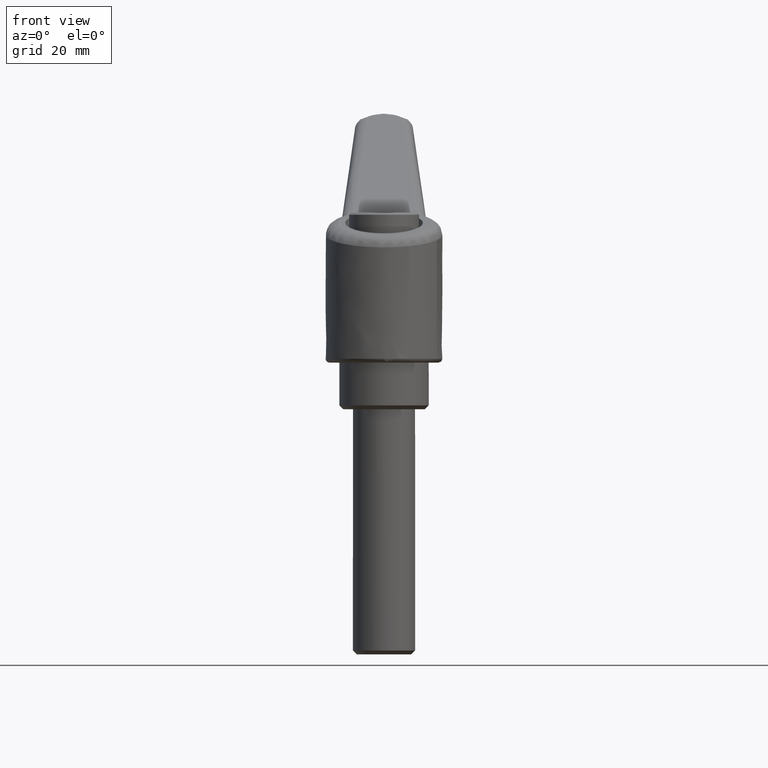
[diagram: clean part render]
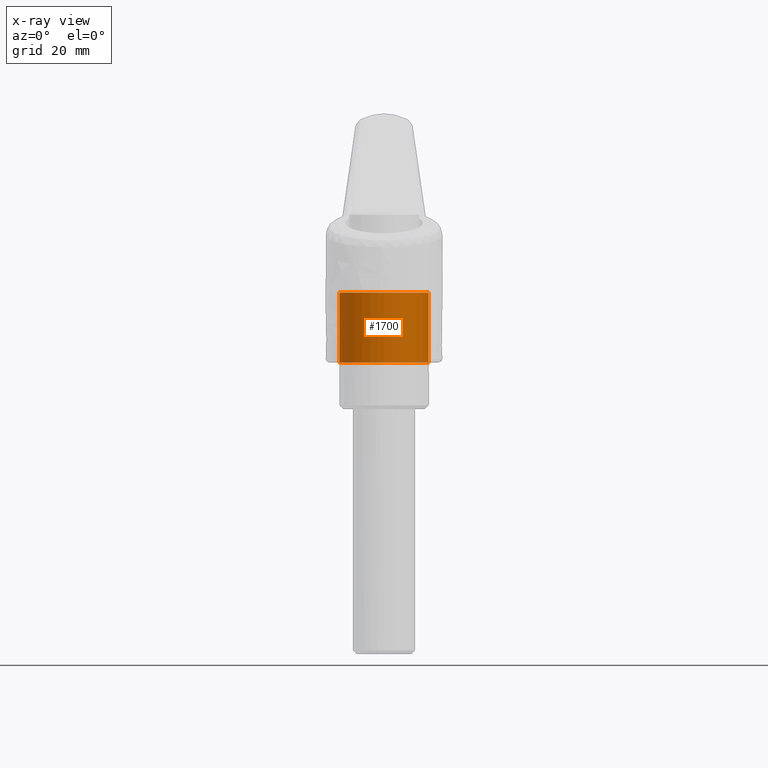
[diagram: x-ray — body ghosted, one internal face saturated and labeled with its STEP entity id]
A machine part, front view, then the same camera in x-ray: the body is ghosted and one INTERNAL B-rep face — a face not visible from any outside direction — is saturated and labeled: STEP entity #1700.
In plain terms, the highlighted face is a freeform B-spline surface patch.
Its self-contained STEP definition (entity closure, byte-faithful):
#1602=CARTESIAN_POINT('',(-0.902279600870224,-11.464549337930970,30.449999999999999));
#1603=CARTESIAN_POINT('',(-12.366828938801191,-10.562269737060745,30.449999999999996));
#1604=CARTESIAN_POINT('',(-11.464549337930970,0.902279600870224,30.449999999999999));
#1605=CARTESIAN_POINT('',(-10.562269737060745,12.366828938801191,30.449999999999996));
#1606=CARTESIAN_POINT('',(0.902279600870224,11.464549337930970,30.449999999999999));
#1607=CARTESIAN_POINT('',(-0.902279600870224,-11.464549337930970,11.538750000000000));
#1608=CARTESIAN_POINT('',(-12.366828938801191,-10.562269737060745,11.538750000000000));
#1609=CARTESIAN_POINT('',(-11.464549337930970,0.902279600870224,11.538750000000000));
#1610=CARTESIAN_POINT('',(-10.562269737060745,12.366828938801191,11.538750000000000));
#1611=CARTESIAN_POINT('',(0.902279600870224,11.464549337930970,11.538750000000000));
#1619=(BOUNDED_SURFACE()B_SPLINE_SURFACE(2,1,((#1602,#1607),(#1603,#1608),(#1604,#1609),(#1605,#1610),(#1606,#1611)),.UNSPECIFIED.,.F.,.F.,.U.)B_SPLINE_SURFACE_WITH_KNOTS((3,2,3),(2,2),(0.0,19.053823869162368,38.107647738324737),(0.0,18.911250000000010),.UNSPECIFIED.)GEOMETRIC_REPRESENTATION_ITEM()RATIONAL_B_SPLINE_SURFACE(((1.0,1.0),(0.707106781186548,0.707106781186548),(1.0,1.0),(0.707106781186548,0.707106781186548),(1.0,1.0)))REPRESENTATION_ITEM('')SURFACE());
#1620=CARTESIAN_POINT('',(-11.500000000000000,0.0,30.0));
#1621=VERTEX_POINT('',#1620);
#1622=CARTESIAN_POINT('',(-0.902279600992910,-11.464549337921310,30.0));
#1623=VERTEX_POINT('',#1622);
#1624=CARTESIAN_POINT('',(-11.500000000000000,0.0,30.0));
#1625=CARTESIAN_POINT('',(-11.500000000000000,-10.630490653841152,30.000000000000004));
#1626=CARTESIAN_POINT('',(-0.902279600992910,-11.464549337921316,30.0));
#1634=(BOUNDED_CURVE()B_SPLINE_CURVE(2,(#1624,#1625,#1626),.UNSPECIFIED.,.F.,.U.)B_SPLINE_CURVE_WITH_KNOTS((3,3),(0.0,0.236331300629098),.UNSPECIFIED.)CURVE()GEOMETRIC_REPRESENTATION_ITEM()RATIONAL_B_SPLINE_CURVE((1.0,0.723120658609495,0.969723356164159))REPRESENTATION_ITEM(''));
#1635=EDGE_CURVE('',#1621,#1623,#1634,.T.);
#1636=ORIENTED_EDGE('',*,*,#1635,.T.);
#1637=CARTESIAN_POINT('',(-0.902279600992910,-11.464549337921310,12.0));
#1638=VERTEX_POINT('',#1637);
#1639=CARTESIAN_POINT('',(-0.902279600992910,-11.464549337921310,30.0));
#1640=CARTESIAN_POINT('',(-0.902279600992910,-11.464549337921310,12.0));
#1641=QUASI_UNIFORM_CURVE('',1,(#1639,#1640),.UNSPECIFIED.,.F.,.U.);
#1642=EDGE_CURVE('',#1623,#1638,#1641,.T.);
#1643=ORIENTED_EDGE('',*,*,#1642,.T.);
#1644=CARTESIAN_POINT('',(-11.500000000000000,0.0,12.0));
#1645=VERTEX_POINT('',#1644);
#1646=CARTESIAN_POINT('',(-11.500000000000000,0.0,12.0));
#1647=CARTESIAN_POINT('',(-11.500000000000000,-10.630490653841152,12.000000000000004));
#1648=CARTESIAN_POINT('',(-0.902279600992910,-11.464549337921316,11.999999999999996));
#1656=(BOUNDED_CURVE()B_SPLINE_CURVE(2,(#1646,#1647,#1648),.UNSPECIFIED.,.F.,.U.)B_SPLINE_CURVE_WITH_KNOTS((3,3),(0.0,0.236331300629098),.UNSPECIFIED.)CURVE()GEOMETRIC_REPRESENTATION_ITEM()RATIONAL_B_SPLINE_CURVE((1.0,0.723120658609495,0.969723356164159))REPRESENTATION_ITEM(''));
#1657=EDGE_CURVE('',#1645,#1638,#1656,.T.);
#1658=ORIENTED_EDGE('',*,*,#1657,.F.);
#1659=CARTESIAN_POINT('',(0.902279600992912,11.464549337921319,12.0));
#1660=VERTEX_POINT('',#1659);
#1661=CARTESIAN_POINT('',(0.902279600992912,11.464549337921317,11.999999999999998));
#1662=CARTESIAN_POINT('',(0.451836230711461,11.500000000000000,12.000000000000004));
#1663=CARTESIAN_POINT('',(0.0,11.500000000000000,12.0));
#1664=CARTESIAN_POINT('',(-11.500000000000000,11.500000000000000,12.0));
#1665=CARTESIAN_POINT('',(-11.500000000000000,0.0,12.0));
#1673=(BOUNDED_CURVE()B_SPLINE_CURVE(2,(#1661,#1662,#1663,#1664,#1665),.UNSPECIFIED.,.F.,.U.)B_SPLINE_CURVE_WITH_KNOTS((3,2,3),(0.736331300629098,0.750000000000000,1.0),.UNSPECIFIED.)CURVE()GEOMETRIC_REPRESENTATION_ITEM()RATIONAL_B_SPLINE_CURVE((0.969723356164158,0.983986122577052,1.0,0.707106781186548,1.0))REPRESENTATION_ITEM(''));
#1674=EDGE_CURVE('',#1660,#1645,#1673,.T.);
#1675=ORIENTED_EDGE('',*,*,#1674,.F.);
#1676=CARTESIAN_POINT('',(0.902279600992908,11.464549337921310,30.0));
#1677=VERTEX_POINT('',#1676);
#1678=CARTESIAN_POINT('',(0.902279600992908,11.464549337921310,30.0));
#1679=CARTESIAN_POINT('',(0.902279600992912,11.464549337921319,12.0));
#1680=QUASI_UNIFORM_CURVE('',1,(#1678,#1679),.UNSPECIFIED.,.F.,.U.);
#1681=EDGE_CURVE('',#1677,#1660,#1680,.T.);
#1682=ORIENTED_EDGE('',*,*,#1681,.F.);
#1683=CARTESIAN_POINT('',(0.902279600992908,11.464549337921316,30.0));
#1684=CARTESIAN_POINT('',(0.451836230711458,11.499999999999998,30.0));
#1685=CARTESIAN_POINT('',(0.0,11.500000000000000,30.0));
#1686=CARTESIAN_POINT('',(-11.500000000000000,11.500000000000000,30.000000000000004));
#1687=CARTESIAN_POINT('',(-11.500000000000000,0.0,30.0));
#1695=(BOUNDED_CURVE()B_SPLINE_CURVE(2,(#1683,#1684,#1685,#1686,#1687),.UNSPECIFIED.,.F.,.U.)B_SPLINE_CURVE_WITH_KNOTS((3,2,3),(0.736331300629098,0.750000000000000,1.0),.UNSPECIFIED.)CURVE()GEOMETRIC_REPRESENTATION_ITEM()RATIONAL_B_SPLINE_CURVE((0.969723356164159,0.983986122577052,1.0,0.707106781186548,1.0))REPRESENTATION_ITEM(''));
#1696=EDGE_CURVE('',#1677,#1621,#1695,.T.);
#1697=ORIENTED_EDGE('',*,*,#1696,.T.);
#1698=EDGE_LOOP('',(#1636,#1643,#1658,#1675,#1682,#1697));
#1699=FACE_OUTER_BOUND('',#1698,.T.);
#1700=ADVANCED_FACE('',(#1699),#1619,.F.);